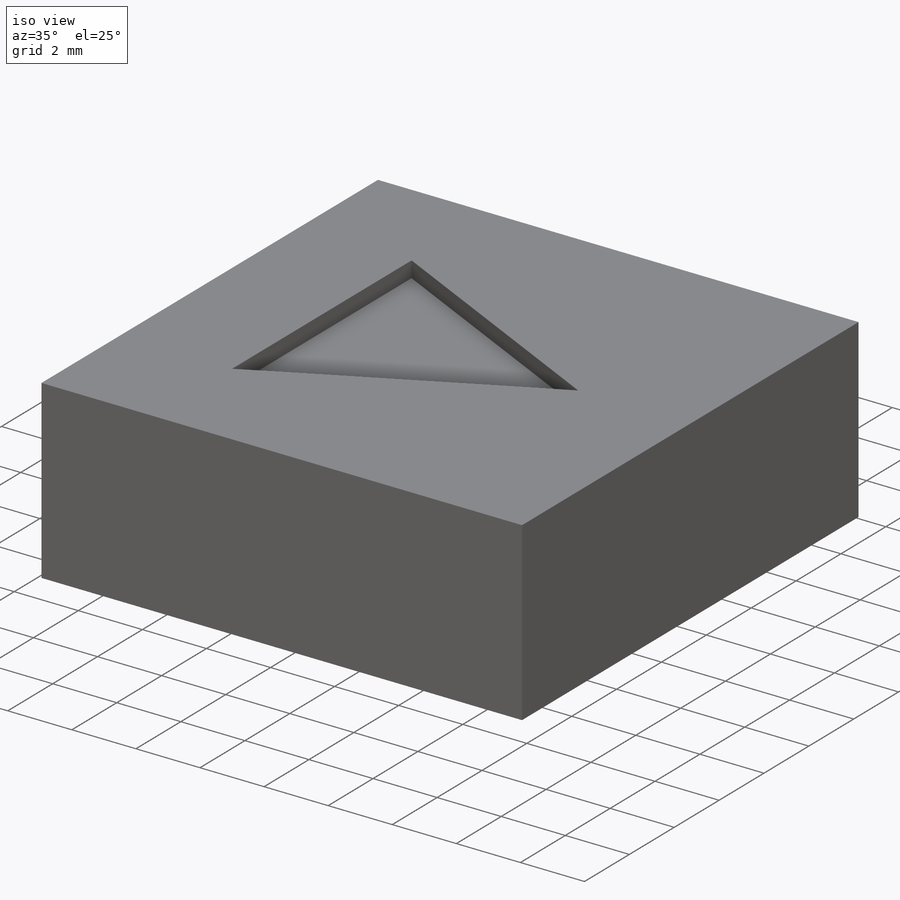
[diagram: iso view]
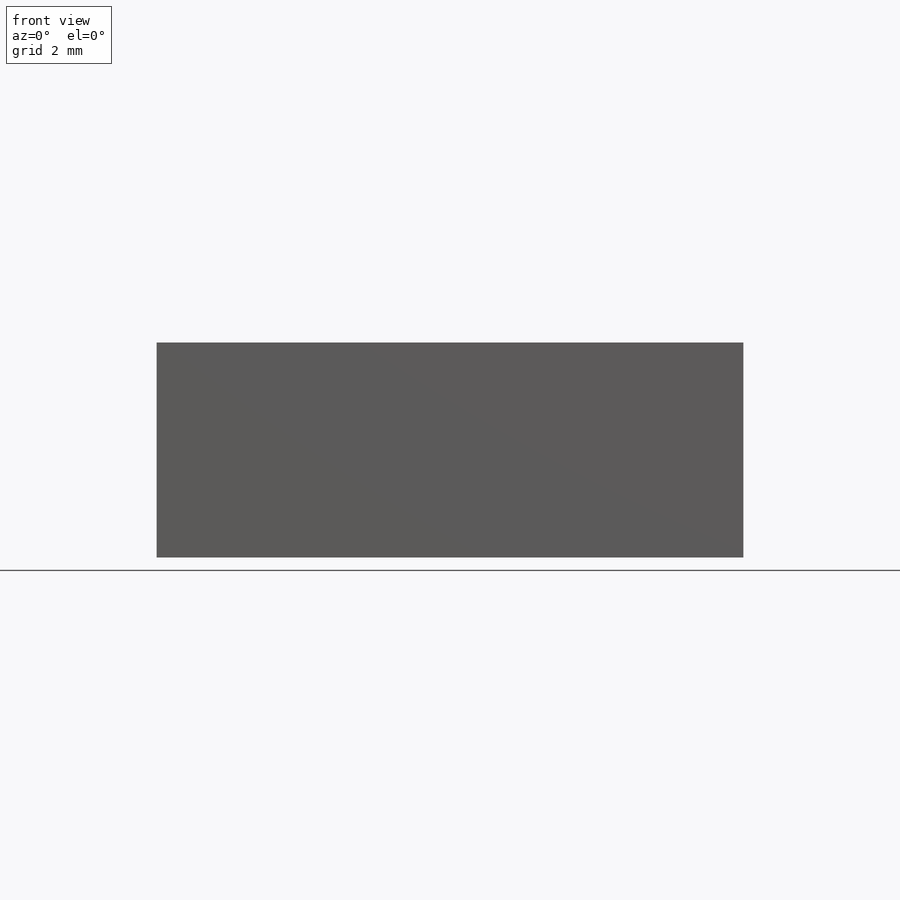
[diagram: front view]
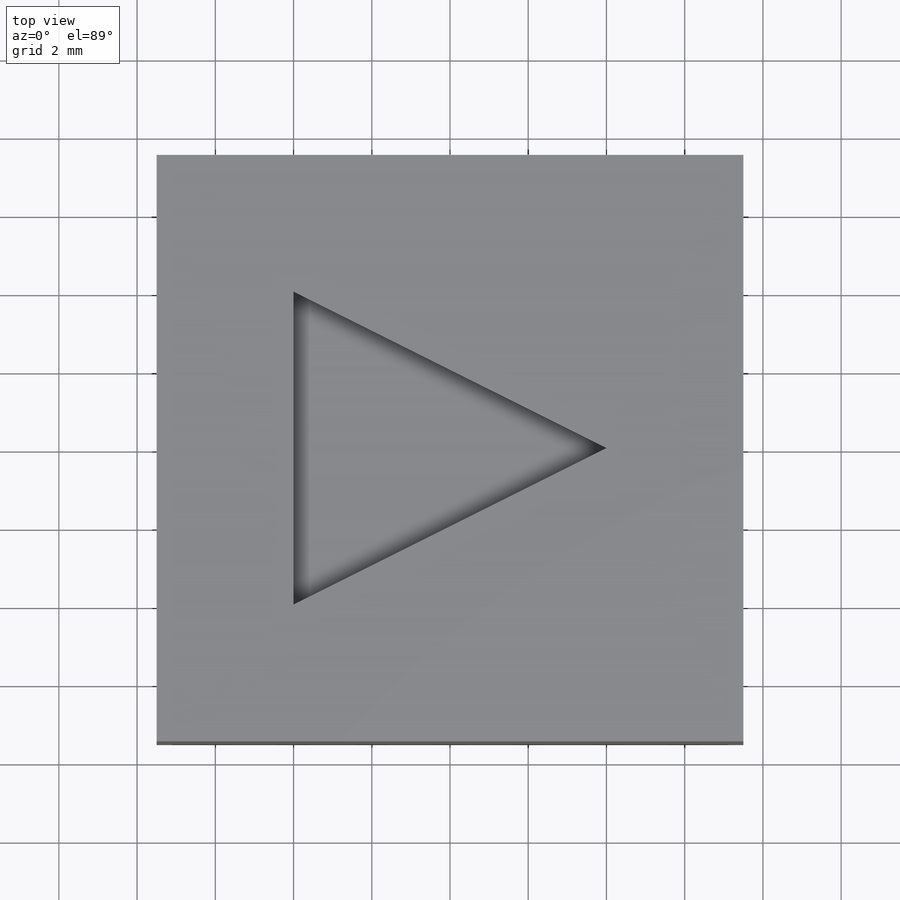
[diagram: top view]
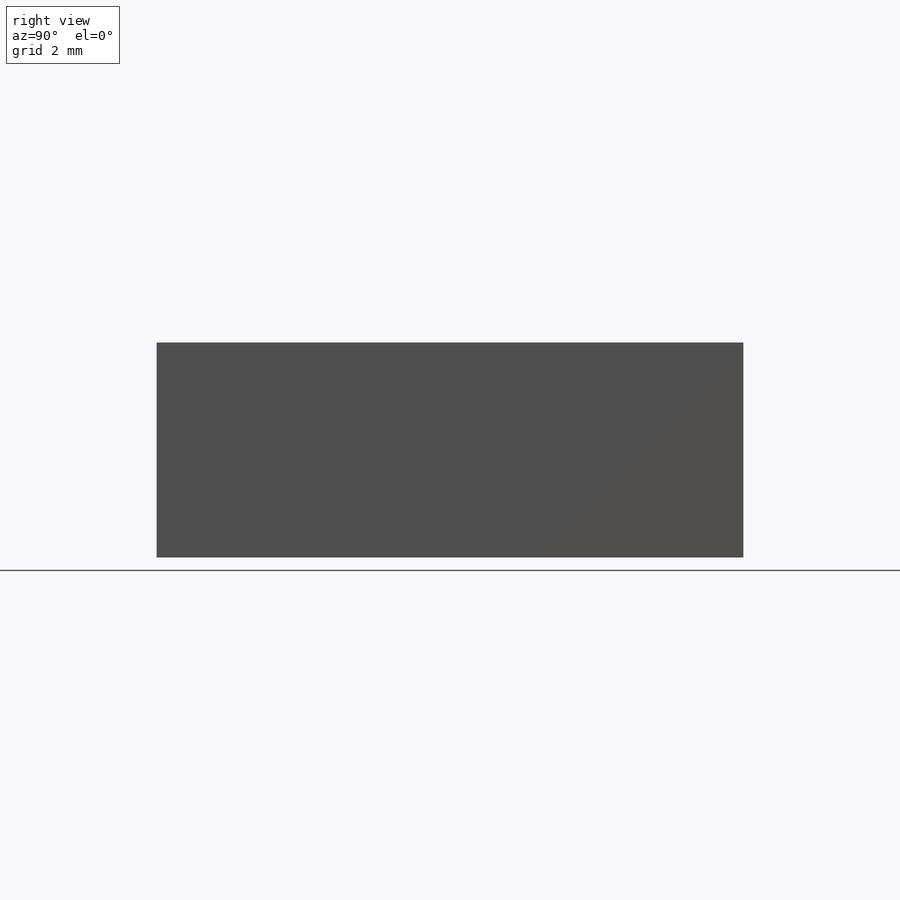
[diagram: right view]
SOLIDWORKS PART (.sldprt)
format: sldprt  version: not decoded by parser v0  size: 797,184 bytes
history: native  units: mm
features: sketch x9, cut_extrude x5, extrude x4, fillet x2, material x1 (+12 scaffold rows collapsed)
feature tree (33):
  scaffold x12  (default folders/planes/origin — collapsed)
  material  "Material <not specified>"
  sketch  "Sketch1"  dims[c1.D1=~33.920429mm c1.D2=~34.171692mm c2.D1=15.0mm]
  extrude  "Boss-Extrude1"  Depth=5.5mm
  sketch  "Sketch2"  dims[c1.D1=~1.417255mm c1.D2=2.0mm c2.D1=11.0mm c2.D3=15.24mm]
  cut_extrude  "Cut-Extrude1"  Depth=1.5mm
  sketch  "Sketch3"  dims[c1.D1=~4.709939mm c1.D2=~4.808473mm c2.D1=3.5mm c2.D2=~4.808473mm c2.D3=~7.778175mm c2.D4=~7.778175mm c3.D3=~7.778175mm c3.D4=~7.778175mm c3.D2=1.4mm c4.D3=0.5mm c4.D4=0.5mm c4.D5=0.5mm c4.D6=0.5mm]
  cut_extrude  "Cut-Extrude2"  Depth=3.5mm
  sketch  "Sketch4"  dims[c1.D1=~4.315802mm c1.D2=~4.374922mm c2.D1=4.4mm]
  cut_extrude  "Cut-Extrude3"  Depth=2.75mm
  fillet  "Fillet1"  Radius=0.75mm
  sketch  "Sketch5"  dims[D1=4.0mm D2=4.0mm D3=1.0mm]
  cut_extrude  "Cut-Extrude4"  Depth=0.5mm
  sketch  "Sketch6"  dims[D1=4.0mm D2=4.0mm D3=1.0mm]
  cut_extrude  "Cut-Extrude5"  Depth=0.5mm
  fillet  "Fillet2"  Radius=7.5mm
  sketch  "Sketch7"  dims[c1.D1=~5.581257mm c1.D2=~1.504714mm c2.D1=~0.629505mm c2.D2=~1.303975mm c3.D1=2.0mm c3.D2=2.75mm c4.D1=~4.301827mm c4.D2=~1.999325mm c5.D1=~1.999325mm c5.D2=1.0mm c5.D3=5.5mm]
  extrude  "Boss-Extrude2"  Depth=0.2mm
  sketch  "Sketch8"  dims[c1.D2=7.5mm c1.D3=~0.064488mm c1.D1=0.0mm c2.D2=0.5mm]
  extrude  "Boss-Extrude3"  Depth=2.25mm
  sketch  "Sketch9"  dims[c1.D1=~13.988134mm c1.D2=~1.480586mm c2.D1=0.5mm c2.D2=15.0mm]
  extrude  "Boss-Extrude4"  Depth=2.25mm
decode coverage: 20 of 20 modeling features carry decoded parameters
note: ~ marks probable driven/reference dimensions
note: suppression state not decoded; provenance and decode notes live in map.json
